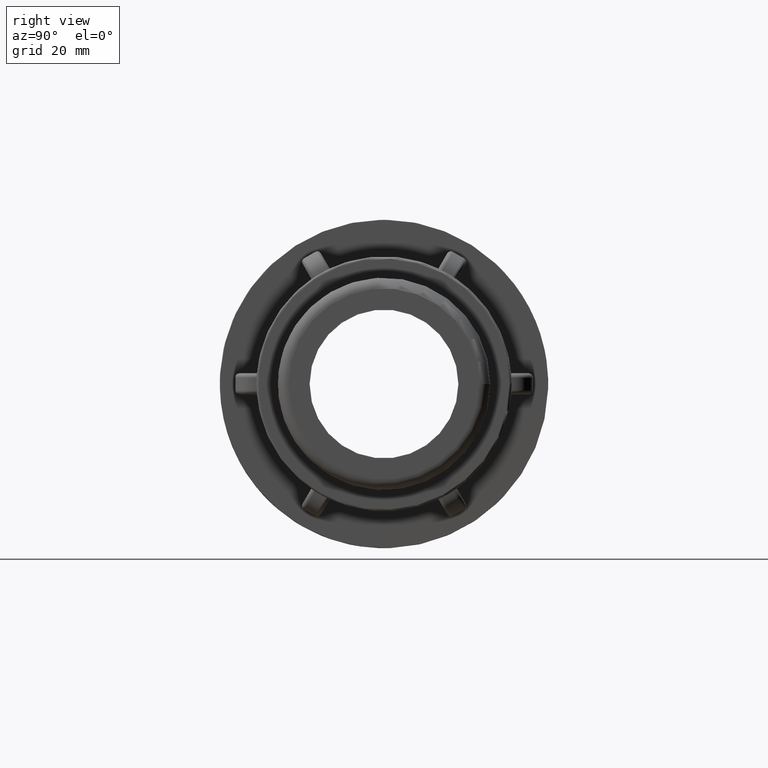
[diagram: clean part render]
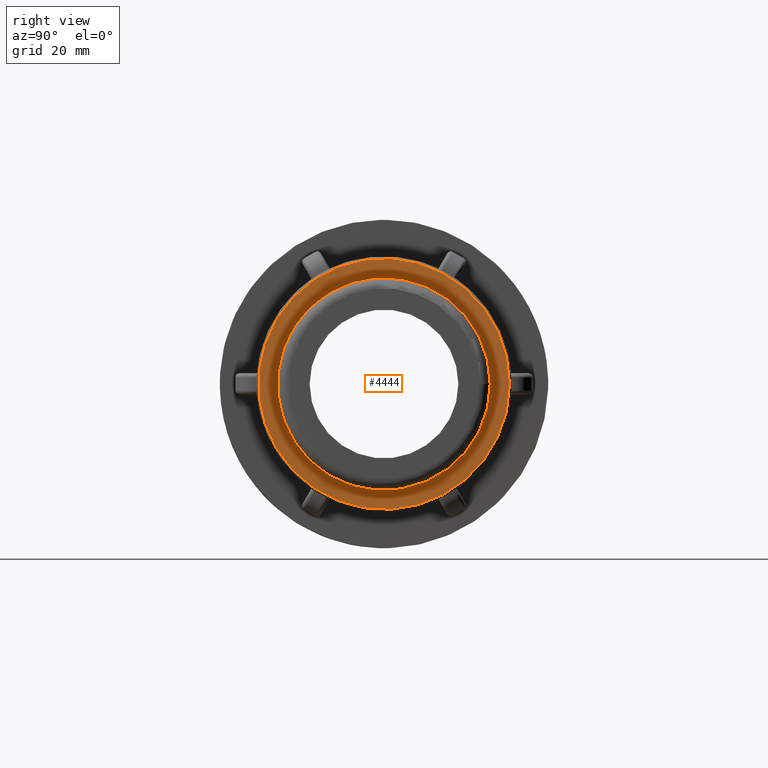
[diagram: same view with one face highlighted and labeled with its STEP entity id]
A machine part, right view. The second image highlights one B-rep face of the part: STEP entity #4444.
In plain terms, the highlighted planar face has unit normal (1, 0, 0).
Its self-contained STEP definition (entity closure, byte-faithful):
#50=FACE_BOUND('',#534,.T.);
#96=PLANE('',#4800);
#257=FACE_OUTER_BOUND('',#533,.T.);
#533=EDGE_LOOP('',(#3237));
#534=EDGE_LOOP('',(#3238));
#1526=CIRCLE('',#4799,35.17226);
#1527=CIRCLE('',#4801,29.807);
#1848=VERTEX_POINT('',#7009);
#1849=VERTEX_POINT('',#7012);
#2357=EDGE_CURVE('',#1848,#1848,#1526,.T.);
#2358=EDGE_CURVE('',#1849,#1849,#1527,.T.);
#3237=ORIENTED_EDGE('',*,*,#2357,.F.);
#3238=ORIENTED_EDGE('',*,*,#2358,.F.);
#4444=ADVANCED_FACE('',(#257,#50),#96,.T.);
#4799=AXIS2_PLACEMENT_3D('',#7010,#5579,#5580);
#4800=AXIS2_PLACEMENT_3D('',#7011,#5581,#5582);
#4801=AXIS2_PLACEMENT_3D('',#7013,#5583,#5584);
#5579=DIRECTION('center_axis',(-1.,0.,0.));
#5580=DIRECTION('ref_axis',(0.,-1.,1.83697019872103E-16));
#5581=DIRECTION('center_axis',(1.,0.,0.));
#5582=DIRECTION('ref_axis',(0.,0.,-1.));
#5583=DIRECTION('center_axis',(1.,0.,0.));
#5584=DIRECTION('ref_axis',(0.,0.,-1.));
#7009=CARTESIAN_POINT('',(-26.,35.17226,-1.07683989069446E-14));
#7010=CARTESIAN_POINT('Origin',(-26.,0.,0.));
#7011=CARTESIAN_POINT('Origin',(-26.,29.807,0.));
#7012=CARTESIAN_POINT('',(-26.,29.807,0.));
#7013=CARTESIAN_POINT('Origin',(-26.,0.,0.));